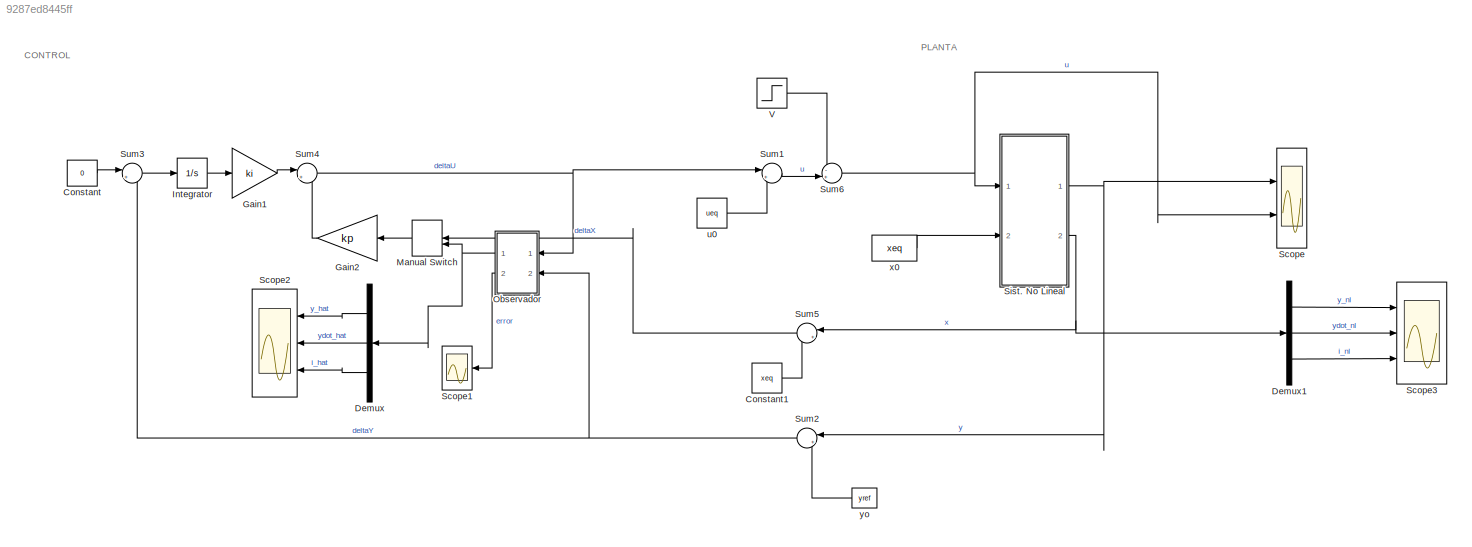
MODEL slx_9287ed8445ff
KIND model
CONFIG AbsTol = auto
CONFIG EnableMultiTasking = off
CONFIG FixedStep = 0.001
CONFIG MaxStep = auto
CONFIG MinStep = auto
CONFIG RelTol = 1e-3
CONFIG SampleTimeConstraint = Unconstrained
CONFIG Solver = ode45
CONFIG SolverName = ode45
CONFIG StartTime = 0.0
CONFIG StopTime = 10
BLOCK [Constant] Constant
  Value = 0
BLOCK [Constant] Constant1
  Value = xeq
BLOCK [Demux] Demux
  DisplayOption = bar
  Outputs = 3
  Ports = [1, 3]
BLOCK [Demux] Demux1
  DisplayOption = bar
  Outputs = 3
  Ports = [1, 3]
BLOCK [Gain] Gain1
  Gain = ki
  Multiplication = Matrix(K*u)
  OutDataTypeStr = Inherit: Inherit via internal rule
  ParamDataTypeStr = Inherit: Inherit via internal rule
  SaturateOnIntegerOverflow = off
BLOCK [Gain] Gain2
  Gain = kp
  Multiplication = Matrix(K*u)
  OutDataTypeStr = Inherit: Inherit via internal rule
  ParamDataTypeStr = Inherit: Inherit via internal rule
  SaturateOnIntegerOverflow = off
BLOCK [Integrator] Integrator
  Ports = [1, 1]
BLOCK [ManualSwitch] Manual Switch
  CurrentSetting = 0
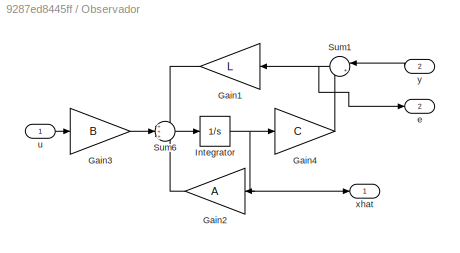
BLOCK [SubSystem] Observador
  Ports = [2, 2]
  RequestExecContextInheritance = off
BLOCK [Gain] Observador/Gain1
  Gain = L
  Multiplication = Matrix(K*u)
  OutDataTypeStr = Inherit: Inherit via internal rule
  ParamDataTypeStr = Inherit: Inherit via internal rule
  SaturateOnIntegerOverflow = off
BLOCK [Gain] Observador/Gain2
  Gain = A
  Multiplication = Matrix(K*u)
  OutDataTypeStr = Inherit: Inherit via internal rule
  ParamDataTypeStr = Inherit: Inherit via internal rule
  SaturateOnIntegerOverflow = off
BLOCK [Gain] Observador/Gain3
  Gain = B
  Multiplication = Matrix(K*u)
  OutDataTypeStr = Inherit: Inherit via internal rule
  ParamDataTypeStr = Inherit: Inherit via internal rule
  SaturateOnIntegerOverflow = off
BLOCK [Gain] Observador/Gain4
  Gain = C
  Multiplication = Matrix(K*u)
  OutDataTypeStr = Inherit: Inherit via internal rule
  ParamDataTypeStr = Inherit: Inherit via internal rule
  SaturateOnIntegerOverflow = off
BLOCK [Integrator] Observador/Integrator
  Ports = [1, 1]
BLOCK [Sum] Observador/Sum1
  IconShape = round
  InputSameDT = off
  Inputs = |+-
  OutDataTypeStr = Inherit: Inherit via internal rule
  Ports = [2, 1]
  SaturateOnIntegerOverflow = off
BLOCK [Sum] Observador/Sum6
  IconShape = round
  InputSameDT = off
  Inputs = +++
  OutDataTypeStr = Inherit: Inherit via internal rule
  Ports = [3, 1]
  SaturateOnIntegerOverflow = off
BLOCK [Outport] Observador/e
  IconDisplay = Port number
  Port = 2
  VectorParamsAs1DForOutWhenUnconnected = off
BLOCK [Inport] Observador/u
  IconDisplay = Port number
BLOCK [Outport] Observador/xhat
  IconDisplay = Port number
  VectorParamsAs1DForOutWhenUnconnected = off
BLOCK [Inport] Observador/y
  IconDisplay = Port number
  Port = 2
BLOCK [Scope] Scope
  Floating = off
  NumInputPorts = 2
  Ports = [2]
  ScopeSpecificationString = Simulink.scopes.TimeScopeBlockCfg('CurrentConfiguration', extmgr.ConfigurationSet(extmgr.Configuration('Core','General UI',true,'FigureColor',[1 1 1]),extmgr.Configuration('Core','Source UI',true),extmgr.Configuration('Sources','WiredSimulink',true,'DataLoggingVariableName','ScopeData1'),extmgr.Configuration('Visuals','Time Domain',true,'SerializedDisplays',{struct('MinYLimReal','-0.06054','MaxYLi...<+3361ch>
BLOCK [Scope] Scope1
  Floating = off
  NumInputPorts = 1
  Ports = [1]
  ScopeSpecificationString = Simulink.scopes.TimeScopeBlockCfg('CurrentConfiguration', extmgr.ConfigurationSet(extmgr.Configuration('Core','General UI',true,'FigureColor',[1 1 1]),extmgr.Configuration('Core','Source UI',true),extmgr.Configuration('Sources','WiredSimulink',true,'DataLoggingVariableName','ScopeData1'),extmgr.Configuration('Visuals','Time Domain',true,'SerializedDisplays',{struct('MinYLimReal','-0.12066','MaxYLi...<+2542ch>
BLOCK [Scope] Scope2
  Floating = off
  NumInputPorts = 3
  Ports = [3]
  ScopeSpecificationString = Simulink.scopes.TimeScopeBlockCfg('CurrentConfiguration', extmgr.ConfigurationSet(extmgr.Configuration('Core','General UI',true),extmgr.Configuration('Core','Source UI',true),extmgr.Configuration('Sources','WiredSimulink',true,'DataLoggingVariableName','ScopeData1'),extmgr.Configuration('Visuals','Time Domain',true,'SerializedDisplays',{struct('MinYLimReal','-1.00000','MaxYLimReal','1.00000','YLab...<+1456ch>
BLOCK [Scope] Scope3
  Floating = off
  NumInputPorts = 3
  Ports = [3]
  ScopeSpecificationString = Simulink.scopes.TimeScopeBlockCfg('CurrentConfiguration', extmgr.ConfigurationSet(extmgr.Configuration('Core','General UI',true),extmgr.Configuration('Core','Source UI',true),extmgr.Configuration('Sources','WiredSimulink',true,'DataLoggingVariableName','ScopeData2'),extmgr.Configuration('Visuals','Time Domain',true,'SerializedDisplays',{struct('MinYLimReal','-0.11408','MaxYLimReal','0.5987','YLabe...<+1539ch>
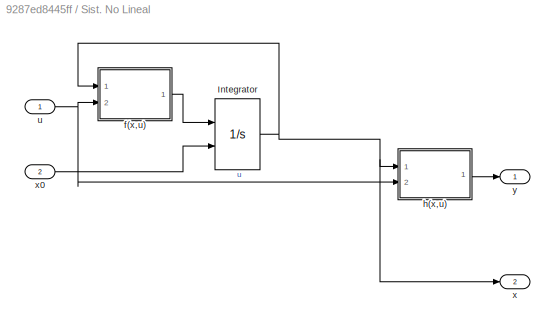
BLOCK [SubSystem] Sist. No Lineal 
  Ports = [2, 2]
  RequestExecContextInheritance = off
BLOCK [Integrator] Sist. No Lineal /Integrator
  InitialConditionSource = external
  LimitOutput = on
  LowerSaturationLimit = -[0.995, 500, 10]
  Ports = [2, 1]
  UpperSaturationLimit = [0.995, 500, 10]
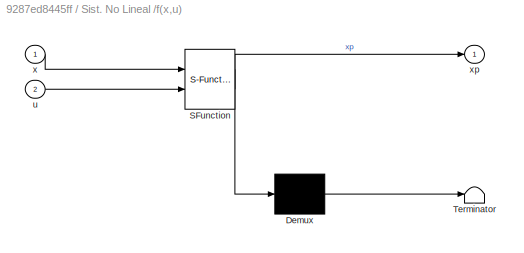
BLOCK [SubSystem] Sist. No Lineal /f(x,u)
  ErrorFcn = Stateflow.Translate.translate
  PermitHierarchicalResolution = ExplicitOnly
  Ports = [2, 1]
  RequestExecContextInheritance = off
  SFBlockType = MATLAB Function
  TreatAsAtomicUnit = on
BLOCK [Demux] Sist. No Lineal /f(x,u)/ Demux 
  Outputs = 1
  Ports = [1, 1]
BLOCK [S-Function] Sist. No Lineal /f(x,u)/ SFunction 
  EnableBusSupport = on
  FunctionName = sf_sfun
  PortCounts = [2 2]
  Ports = [2, 2]
  SFcnIsStateOwnerBlock = off
  SFunctionDeploymentMode = off
  Tag = Stateflow S-Function 1
BLOCK [Terminator] Sist. No Lineal /f(x,u)/ Terminator 
BLOCK [Inport] Sist. No Lineal /f(x,u)/u
  IconDisplay = Port number
  Port = 2
BLOCK [Inport] Sist. No Lineal /f(x,u)/x
  IconDisplay = Port number
BLOCK [Outport] Sist. No Lineal /f(x,u)/xp
  IconDisplay = Port number
  VectorParamsAs1DForOutWhenUnconnected = off
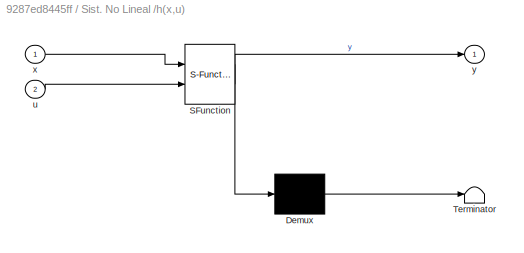
BLOCK [SubSystem] Sist. No Lineal /h(x,u)
  ErrorFcn = Stateflow.Translate.translate
  PermitHierarchicalResolution = ExplicitOnly
  Ports = [2, 1]
  RequestExecContextInheritance = off
  SFBlockType = MATLAB Function
  TreatAsAtomicUnit = on
BLOCK [Demux] Sist. No Lineal /h(x,u)/ Demux 
  Outputs = 1
  Ports = [1, 1]
BLOCK [S-Function] Sist. No Lineal /h(x,u)/ SFunction 
  EnableBusSupport = on
  FunctionName = sf_sfun
  PortCounts = [2 2]
  Ports = [2, 2]
  SFcnIsStateOwnerBlock = off
  SFunctionDeploymentMode = off
  Tag = Stateflow S-Function 2
BLOCK [Terminator] Sist. No Lineal /h(x,u)/ Terminator 
BLOCK [Inport] Sist. No Lineal /h(x,u)/u
  IconDisplay = Port number
  Port = 2
BLOCK [Inport] Sist. No Lineal /h(x,u)/x
  IconDisplay = Port number
BLOCK [Outport] Sist. No Lineal /h(x,u)/y
  IconDisplay = Port number
  VectorParamsAs1DForOutWhenUnconnected = off
BLOCK [Inport] Sist. No Lineal /u
  IconDisplay = Port number
BLOCK [Outport] Sist. No Lineal /x
  IconDisplay = Port number
  Port = 2
  VectorParamsAs1DForOutWhenUnconnected = off
BLOCK [Inport] Sist. No Lineal /x0
  IconDisplay = Port number
  Port = 2
BLOCK [Outport] Sist. No Lineal /y
  IconDisplay = Port number
  VectorParamsAs1DForOutWhenUnconnected = off
BLOCK [Sum] Sum1
  IconShape = round
  InputSameDT = off
  Inputs = |++
  OutDataTypeStr = Inherit: Inherit via internal rule
  Ports = [2, 1]
  SaturateOnIntegerOverflow = off
BLOCK [Sum] Sum2
  IconShape = round
  InputSameDT = off
  Inputs = |+-
  OutDataTypeStr = Inherit: Inherit via internal rule
  Ports = [2, 1]
  SaturateOnIntegerOverflow = off
BLOCK [Sum] Sum3
  IconShape = round
  InputSameDT = off
  Inputs = |+-
  OutDataTypeStr = Inherit: Inherit via internal rule
  Ports = [2, 1]
  SaturateOnIntegerOverflow = off
BLOCK [Sum] Sum4
  IconShape = round
  InputSameDT = off
  Inputs = |++
  OutDataTypeStr = Inherit: Inherit via internal rule
  Ports = [2, 1]
  SaturateOnIntegerOverflow = off
BLOCK [Sum] Sum5
  IconShape = round
  InputSameDT = off
  Inputs = |+-
  OutDataTypeStr = Inherit: Inherit via internal rule
  Ports = [2, 1]
  SaturateOnIntegerOverflow = off
BLOCK [Sum] Sum6
  IconShape = round
  InputSameDT = off
  Inputs = -+|
  OutDataTypeStr = Inherit: Inherit via internal rule
  Ports = [2, 1]
  SaturateOnIntegerOverflow = off
BLOCK [Step] V
  SampleTime = 0
  Time = 5
BLOCK [Constant] u0
  Value = ueq
BLOCK [Constant] x0
  Value = xeq
BLOCK [Constant] yo
  Value = yref
ANNOTATION (root): CONTROL
ANNOTATION (root): PLANTA
LINE Constant1:1 -> Sum5:2
LINE Constant:1 -> Sum3:1
LINE Demux1:1 -> Scope3:1
LINE Demux1:2 -> Scope3:2
LINE Demux1:3 -> Scope3:3
LINE Demux:1 -> Scope2:1
LINE Demux:2 -> Scope2:2
LINE Demux:3 -> Scope2:3
LINE Gain1:1 -> Sum4:1
LINE Gain2:1 -> Sum4:2
LINE Integrator:1 -> Gain1:1
LINE Manual Switch:1 -> Gain2:1
LINE Observador/Gain1:1 -> Observador/Sum6:1
LINE Observador/Gain2:1 -> Observador/Sum6:3
LINE Observador/Gain3:1 -> Observador/Sum6:2
LINE Observador/Gain4:1 -> Observador/Sum1:2
NET Observador/Integrator:1 -> Observador/Gain2:1, Observador/Gain4:1, Observador/xhat:1
NET Observador/Sum1:1 -> Observador/Gain1:1, Observador/e:1
LINE Observador/Sum6:1 -> Observador/Integrator:1
LINE Observador/u:1 -> Observador/Gain3:1
LINE Observador/y:1 -> Observador/Sum1:1
NET Observador:1 -> Demux:1, Manual Switch:2
LINE Observador:2 -> Scope1:1
NET Sist. No Lineal /Integrator:1 -> Sist. No Lineal /f(x,u):1, Sist. No Lineal /h(x,u):1, Sist. No Lineal /x:1
LINE Sist. No Lineal /f(x,u):1 -> Sist. No Lineal /Integrator:1
LINE Sist. No Lineal /h(x,u):1 -> Sist. No Lineal /y:1
NET Sist. No Lineal /u:1 -> Sist. No Lineal /f(x,u):2, Sist. No Lineal /h(x,u):2
LINE Sist. No Lineal /x0:1 -> Sist. No Lineal /Integrator:2
NET Sist. No Lineal :1 -> Scope:1, Sum2:1
NET Sist. No Lineal :2 -> Demux1:1, Sum5:1
LINE Sum1:1 -> Sum6:2
NET Sum2:1 -> Observador:2, Sum3:2
LINE Sum3:1 -> Integrator:1
NET Sum4:1 -> Observador:1, Sum1:1
LINE Sum5:1 -> Manual Switch:1
NET Sum6:1 -> Scope:2, Sist. No Lineal :1
LINE V:1 -> Sum6:1
LINE u0:1 -> Sum1:2
LINE x0:1 -> Sist. No Lineal :2
LINE yo:1 -> Sum2:2
note: NET lines group one-source signal fan-out (src -> all destinations, sorted); 1:1 wires keep LINE
CHART Sist.
No Lineal
/f(x,u) states=1 transitions=1
  STATE_LABEL 'eML_blk_kernel()'
  STATE_LABEL 'SCRIPT:\nfunction xp  = f(x, u)\n\nLIMIT = 0.99;\nif abs(x(1)) <= LIMIT\n    xp1 = x(2);\n    xp2 = (5*(x(3) + 2)^2)/(2*(x(1) - 1)^2) ...\n        - (5*(x(3) - 2)^2)/(2*(x(1) + 1)^2) - 10; \nelse\n    xp1 = 0;\n    xp2 = 0;    \nend\n\nxp3 = - 4*x(3)^2 + u;\nxp = [xp1; xp2; xp3];'
CHART Sist.
No Lineal
/h(x,u) states=1 transitions=1
  STATE_LABEL 'eML_blk_kernel()'
  STATE_LABEL 'SCRIPT:\nfunction y = h(x,u)\n\ny=x(1);\n\n\n\n\n\n\n'
